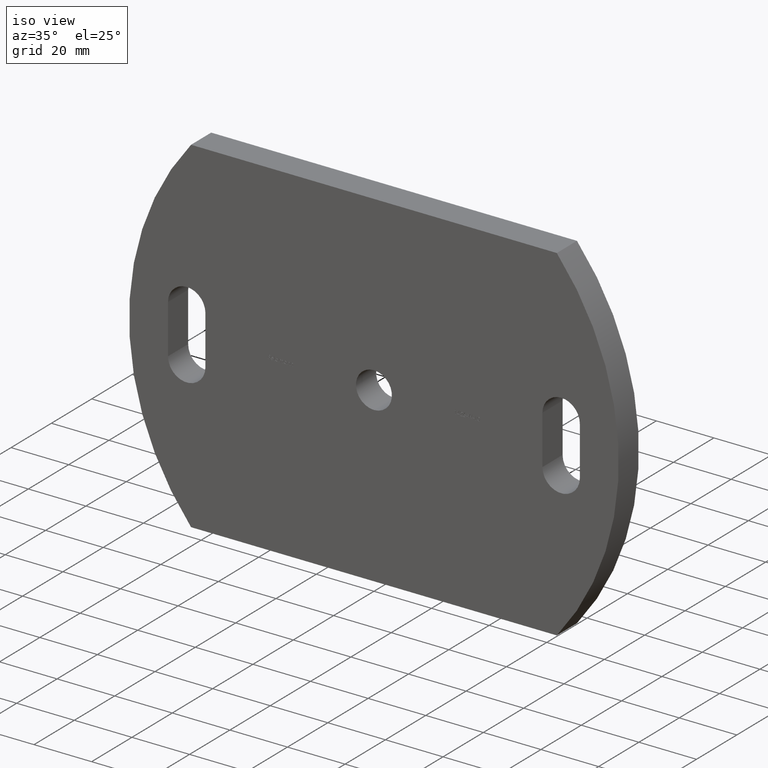
[diagram: clean part render]
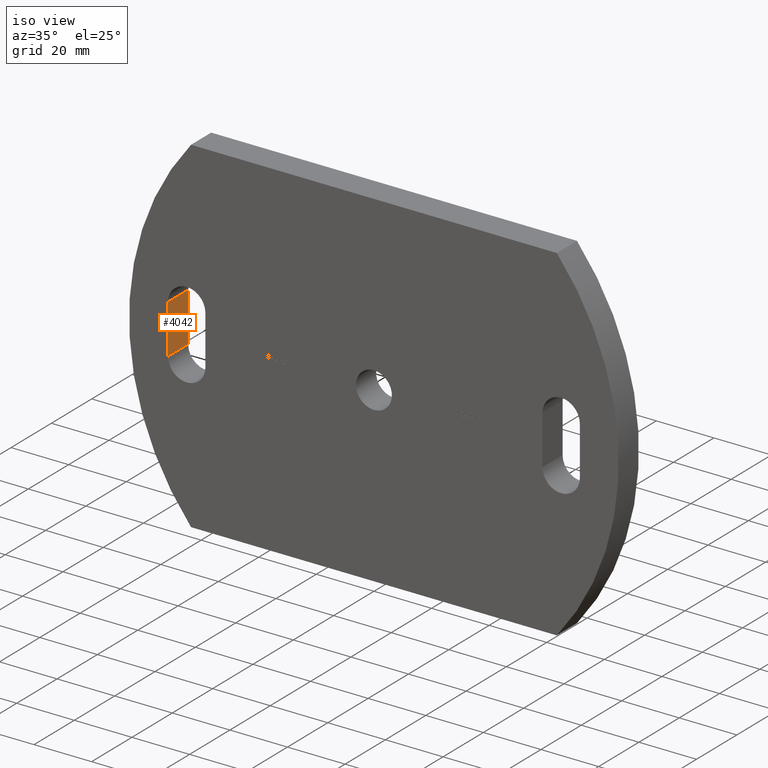
[diagram: same view with one face highlighted and labeled with its STEP entity id]
A machine part, iso view. The second image highlights one B-rep face of the part: STEP entity #4042.
In plain terms, the highlighted planar face has unit normal (-1, 0, 0).
Its self-contained STEP definition (entity closure, byte-faithful):
#661 = AXIS2_PLACEMENT_3D ( 'NONE', #4567, #7913, #2017 ) ;
#675 = CARTESIAN_POINT ( 'NONE',  ( -71.50000000000000000, 10.00000000000000000, 8.499999999999982200 ) ) ;
#1219 = ORIENTED_EDGE ( 'NONE', *, *, #4013, .F. ) ;
#1569 = CARTESIAN_POINT ( 'NONE',  ( -71.50000000000000000, 10.00000000000000000, -8.499999999999985800 ) ) ;
#2017 = DIRECTION ( 'NONE',  ( 0.0000000000000000000, 0.0000000000000000000, 1.000000000000000000 ) ) ;
#2028 = VERTEX_POINT ( 'NONE', #6745 ) ;
#2047 = PLANE ( 'NONE',  #661 ) ;
#2547 = DIRECTION ( 'NONE',  ( 0.0000000000000000000, 0.0000000000000000000, 1.000000000000000000 ) ) ;
#2564 = VECTOR ( 'NONE', #7010, 1000.000000000000000 ) ;
#2637 = VECTOR ( 'NONE', #9430, 1000.000000000000000 ) ;
#2888 = EDGE_LOOP ( 'NONE', ( #9940, #4709, #1219, #10681 ) ) ;
#3698 = CARTESIAN_POINT ( 'NONE',  ( -71.50000000000000000, 0.0000000000000000000, 8.499999999999982200 ) ) ;
#3893 = LINE ( 'NONE', #7673, #2564 ) ;
#4013 = EDGE_CURVE ( 'NONE', #7416, #2028, #3893, .T. ) ;
#4042 = ADVANCED_FACE ( 'NONE', ( #9686 ), #2047, .F. ) ;
#4227 = LINE ( 'NONE', #10729, #5256 ) ;
#4567 = CARTESIAN_POINT ( 'NONE',  ( -71.50000000000000000, 0.0000000000000000000, -8.499999999999985800 ) ) ;
#4709 = ORIENTED_EDGE ( 'NONE', *, *, #6806, .F. ) ;
#5073 = VERTEX_POINT ( 'NONE', #675 ) ;
#5102 = EDGE_CURVE ( 'NONE', #7416, #5156, #4227, .T. ) ;
#5115 = LINE ( 'NONE', #3698, #2637 ) ;
#5156 = VERTEX_POINT ( 'NONE', #7423 ) ;
#5256 = VECTOR ( 'NONE', #6628, 1000.000000000000000 ) ;
#6520 = LINE ( 'NONE', #1569, #7923 ) ;
#6628 = DIRECTION ( 'NONE',  ( -0.0000000000000000000, 1.000000000000000000, -0.0000000000000000000 ) ) ;
#6745 = CARTESIAN_POINT ( 'NONE',  ( -71.50000000000000000, 0.0000000000000000000, 8.499999999999982200 ) ) ;
#6806 = EDGE_CURVE ( 'NONE', #2028, #5073, #5115, .T. ) ;
#7010 = DIRECTION ( 'NONE',  ( 0.0000000000000000000, 0.0000000000000000000, 1.000000000000000000 ) ) ;
#7416 = VERTEX_POINT ( 'NONE', #9604 ) ;
#7423 = CARTESIAN_POINT ( 'NONE',  ( -71.50000000000000000, 10.00000000000000000, -8.499999999999985800 ) ) ;
#7673 = CARTESIAN_POINT ( 'NONE',  ( -71.50000000000000000, 0.0000000000000000000, -8.499999999999985800 ) ) ;
#7913 = DIRECTION ( 'NONE',  ( -1.000000000000000000, 0.0000000000000000000, 0.0000000000000000000 ) ) ;
#7923 = VECTOR ( 'NONE', #2547, 1000.000000000000000 ) ;
#8566 = EDGE_CURVE ( 'NONE', #5156, #5073, #6520, .T. ) ;
#9430 = DIRECTION ( 'NONE',  ( -0.0000000000000000000, 1.000000000000000000, -0.0000000000000000000 ) ) ;
#9604 = CARTESIAN_POINT ( 'NONE',  ( -71.50000000000000000, 0.0000000000000000000, -8.499999999999985800 ) ) ;
#9686 = FACE_OUTER_BOUND ( 'NONE', #2888, .T. ) ;
#9940 = ORIENTED_EDGE ( 'NONE', *, *, #8566, .T. ) ;
#10681 = ORIENTED_EDGE ( 'NONE', *, *, #5102, .T. ) ;
#10729 = CARTESIAN_POINT ( 'NONE',  ( -71.50000000000000000, 0.0000000000000000000, -8.499999999999985800 ) ) ;